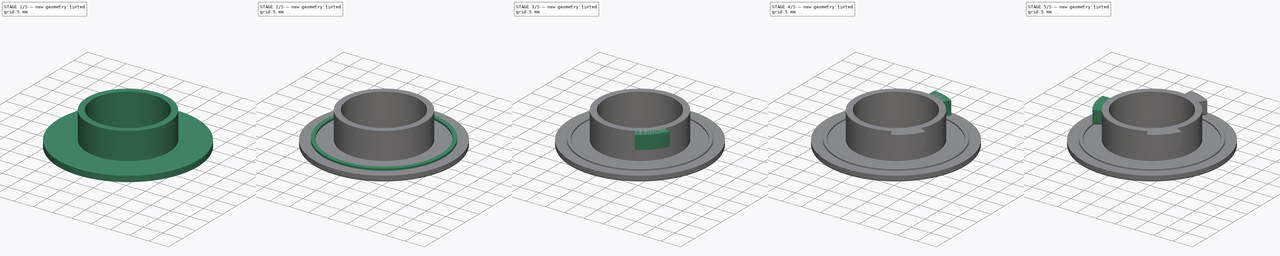
[diagram: build sequence overview — one tinted view per stage of 5, left to right]
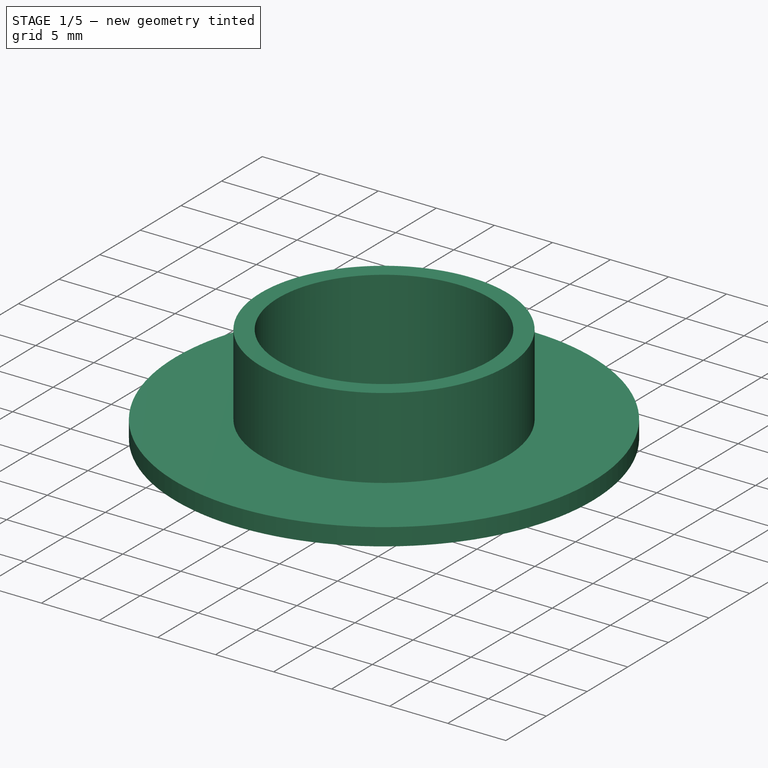
[diagram: stage 1 of 5 — iso view after this stage's code; geometry added in this stage tinted green]
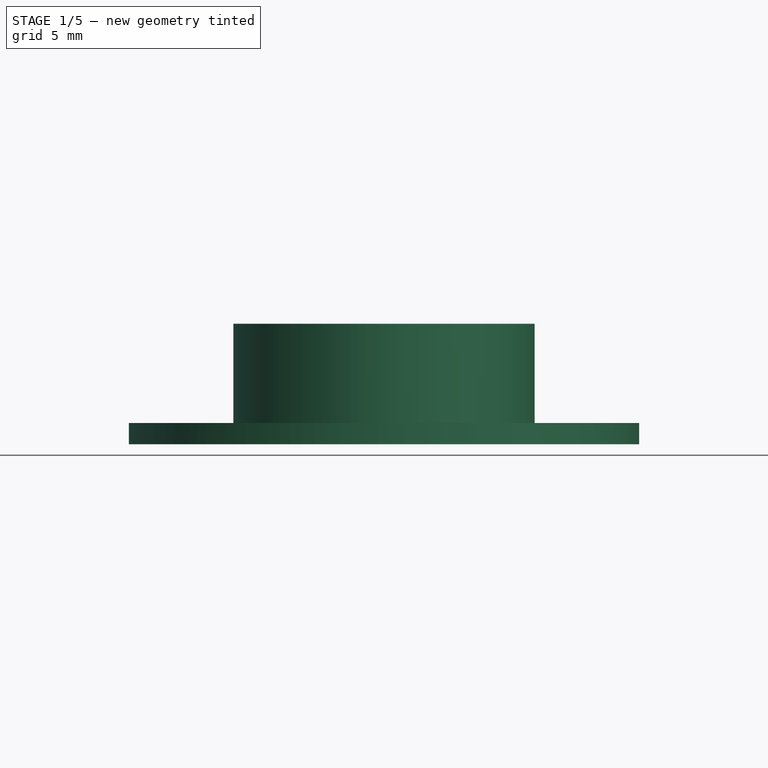
[diagram: stage 1 of 5 — front view after this stage's code; geometry added in this stage tinted green]
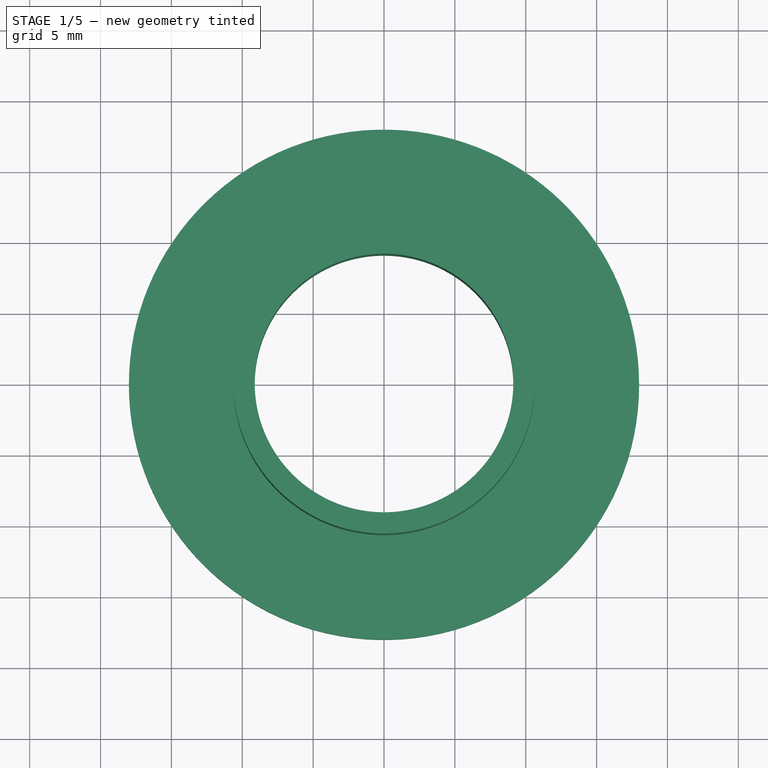
[diagram: stage 1 of 5 — top view after this stage's code; geometry added in this stage tinted green]
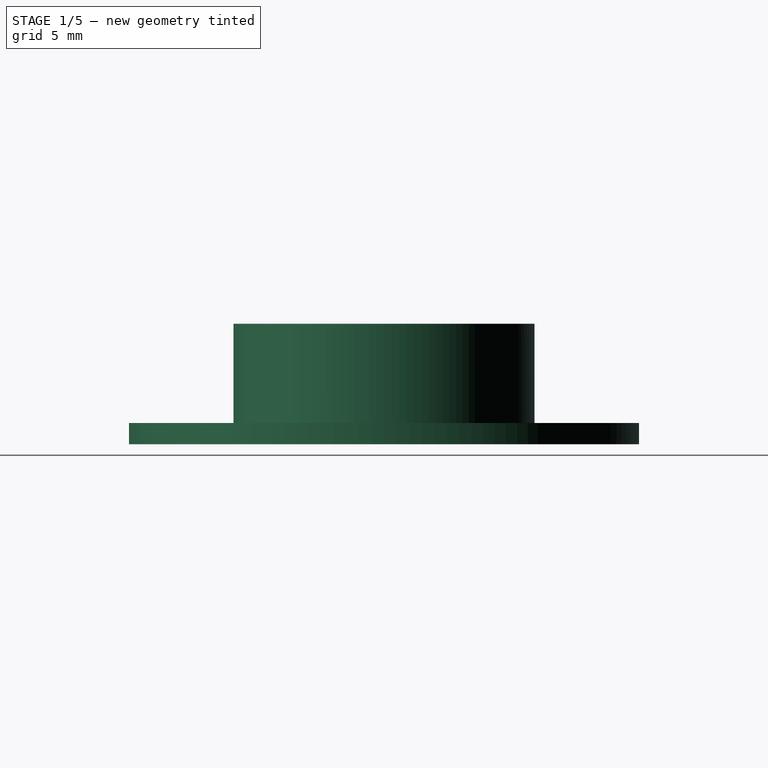
[diagram: stage 1 of 5 — right view after this stage's code; geometry added in this stage tinted green]
FCSTD DOCUMENT  (FreeCAD 0.19R21857 (Git))
Label: BayonetBaseMaleV1
License: All rights reserved
LicenseURL: http://en.wikipedia.org/wiki/All_rights_reserved
objects: Part::Fillet×11, Sketcher::SketchObject×4, Part::Revolution×4, Part::Cylinder×3, Part::MultiFuse×2, Part::Cut×2, Part::Part2DObjectPython×1, Part::Extrusion×1
note: 28 computed .brp shape members not serialized (recipe doc carries the construction recipe); baked Part::Feature solids carry a one-line shape summary decoded from their .brp

FEATURE [Part::Cylinder] Cylinder
  Angle = 360
  AttacherType = Attacher::AttachEngine3D
  Height = 8.5
  Radius = 9.125
FEATURE [Part::Cylinder] Cylinder001
  Angle = 360
  AttacherType = Attacher::AttachEngine3D
  Height = 8.5
  Radius = 10.625
FEATURE [Part::Cylinder] Cylinder002
  Angle = 360
  AttacherType = Attacher::AttachEngine3D
  Height = 1.5
  Radius = 18
FEATURE [Part::MultiFuse] Fusion
  Shapes = -> [Cylinder002,Cylinder001]
FEATURE [Part::Cut] Cut
  Base = -> Fusion
  Tool = -> Cylinder
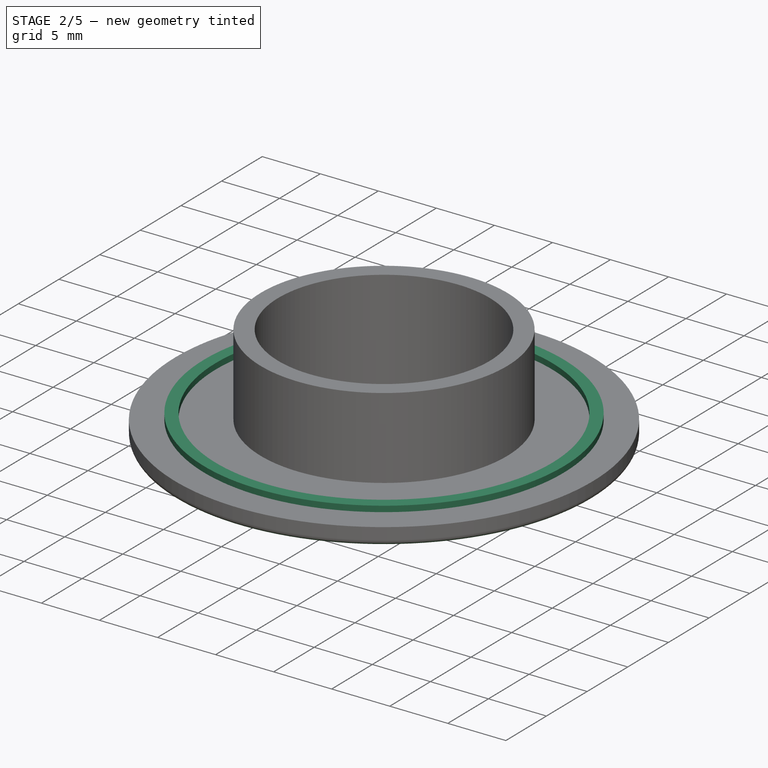
[diagram: stage 2 of 5 — iso view after this stage's code; geometry added in this stage tinted green]
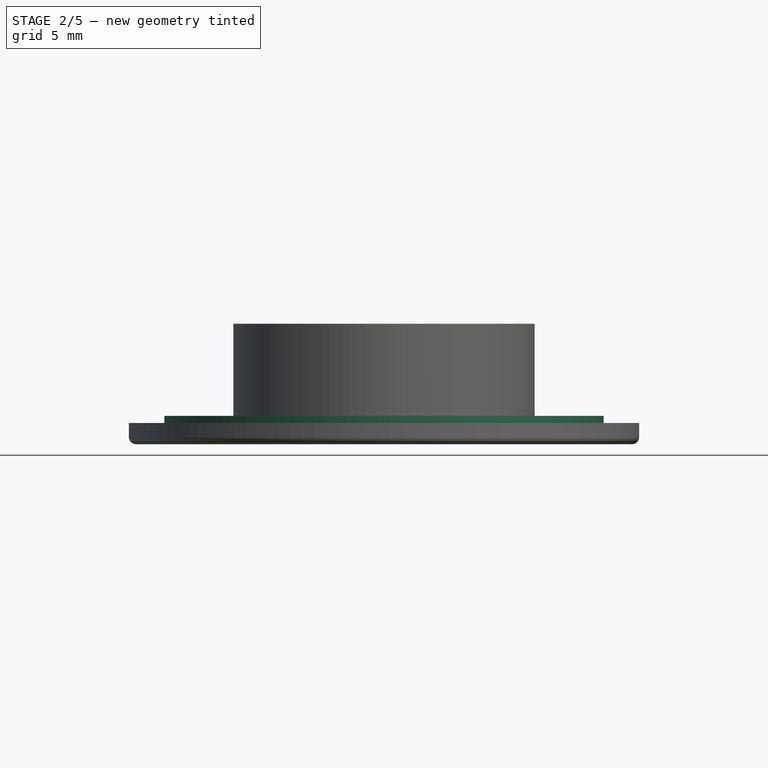
[diagram: stage 2 of 5 — front view after this stage's code; geometry added in this stage tinted green]
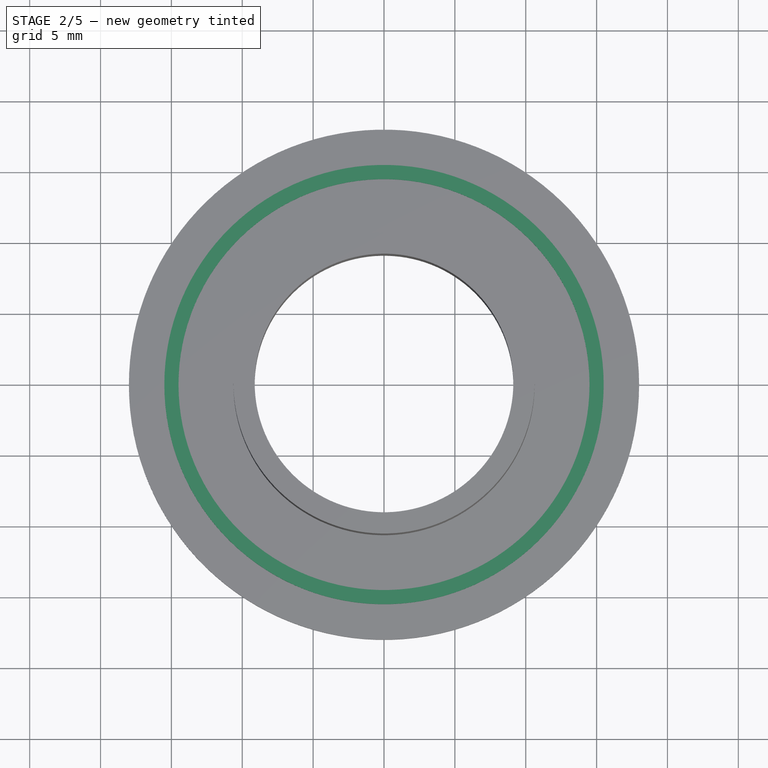
[diagram: stage 2 of 5 — top view after this stage's code; geometry added in this stage tinted green]
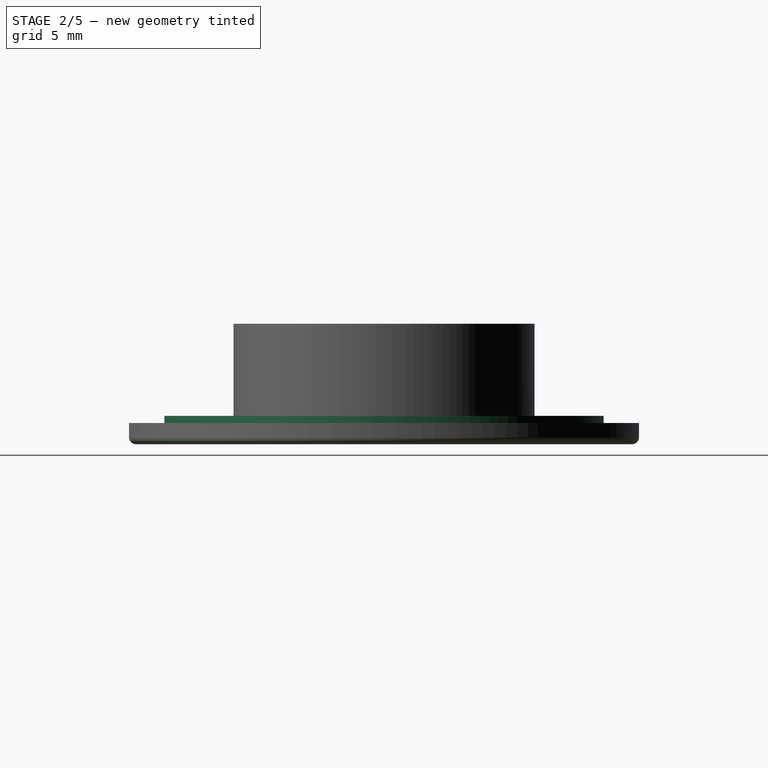
[diagram: stage 2 of 5 — right view after this stage's code; geometry added in this stage tinted green]
FEATURE [Sketcher::SketchObject] Sketch  label="GrooveProfile"
  Placement = pos=(0,0,0) rot=(1,0,0;1.5708rad)
  sketch-geometry (4):
    g0: LineSegment StartX=15.5 StartY=2 StartZ=0 EndX=14.5 EndY=2 EndZ=0
    g1: LineSegment StartX=14.5 StartY=2 StartZ=0 EndX=14.5 EndY=1 EndZ=0
    g2: LineSegment StartX=14.5 StartY=1 StartZ=0 EndX=15.5 EndY=1 EndZ=0
    g3: LineSegment StartX=15.5 StartY=1 StartZ=0 EndX=15.5 EndY=2 EndZ=0
  constraints (12):
    c: Coincident(g0,g1)
    c: Coincident(g1,g2)
    c: Coincident(g2,g3)
    c: Coincident(g3,g0)
    c: Horizontal(g0)
    c: Horizontal(g2)
    c: Vertical(g1)
    c: Vertical(g3)
    c: DistanceY(g1,g0) = 1
    c: Equal(g0,g1)
    c: DistanceX(g-1,g0) = 15.5
    c: DistanceY(g1,g-1) = -1
FEATURE [Part::Revolution] Revolve
  Angle = 360
  Axis = (0,0,1)
  Base = (0,0,0)
  FaceMakerClass = Part::FaceMakerBullseye
  Solid = true
  Source = -> Sketch
  Symmetric = false
FEATURE [Part::Part2DObjectPython] ShapeString  # Draft 2D object (typed FeaturePython)
  FontFile = <path>
  Size = 5
  String = V1
  Tracking = 0
FEATURE [Part::Extrusion] Extrude
  Base = -> ShapeString
  Dir = (0,0,1)
  DirMode = 2
  FaceMakerClass = Part::FaceMakerBullseye
  LengthFwd = 0.5
  LengthRev = 0
  Placement = pos=(-11,4,0.5) rot=(-0.707107,0.707107,0;3.14159rad)
  Solid = false
  Symmetric = false
FEATURE [Part::Fillet] Fillet010
  Base = -> Cut
  Edges = 1 edges r=0.5: [Edge3]
FEATURE [Part::Cut] Cut001
  Base = -> Fillet010
  Tool = -> Extrude
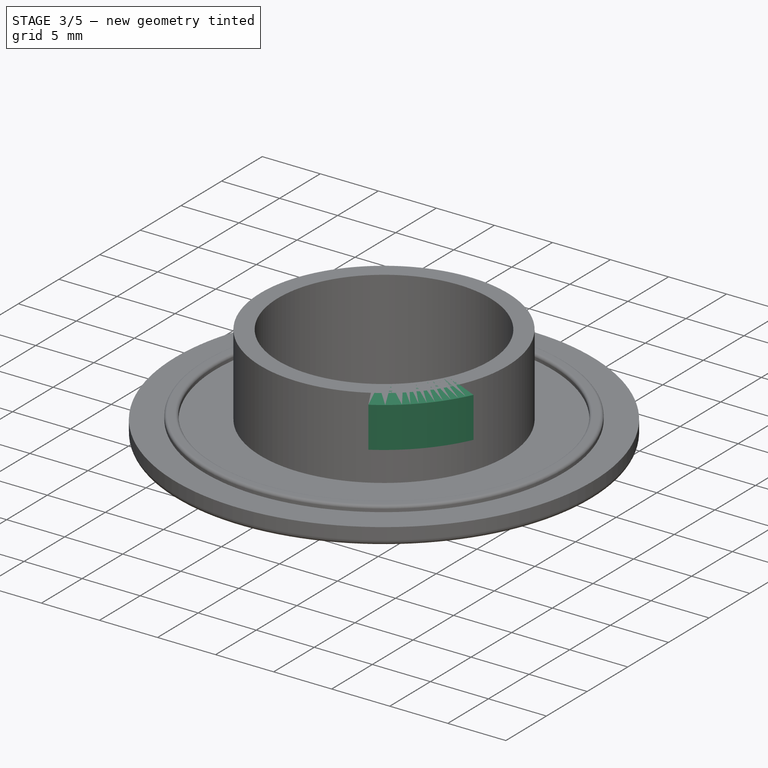
[diagram: stage 3 of 5 — iso view after this stage's code; geometry added in this stage tinted green]
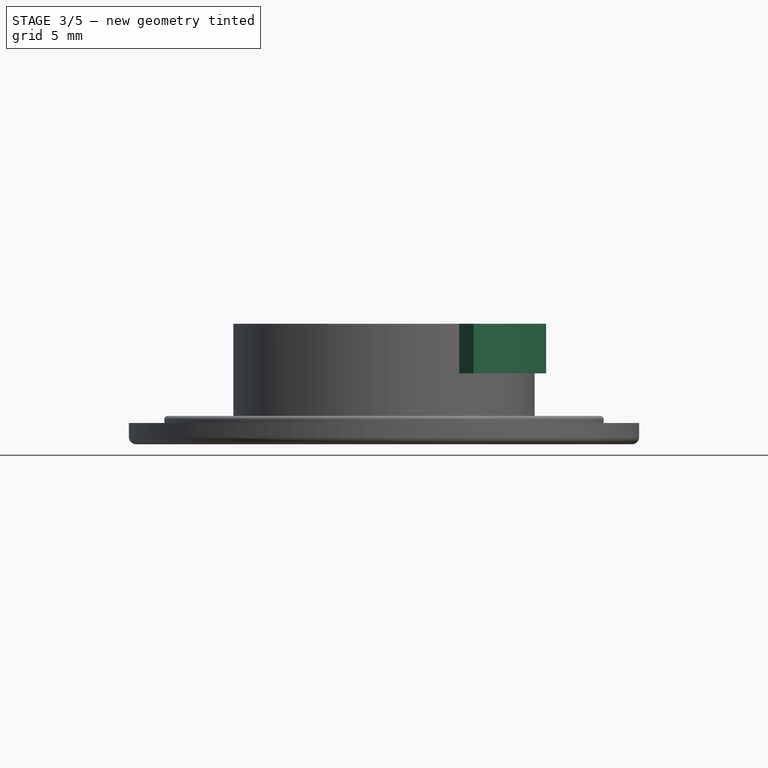
[diagram: stage 3 of 5 — front view after this stage's code; geometry added in this stage tinted green]
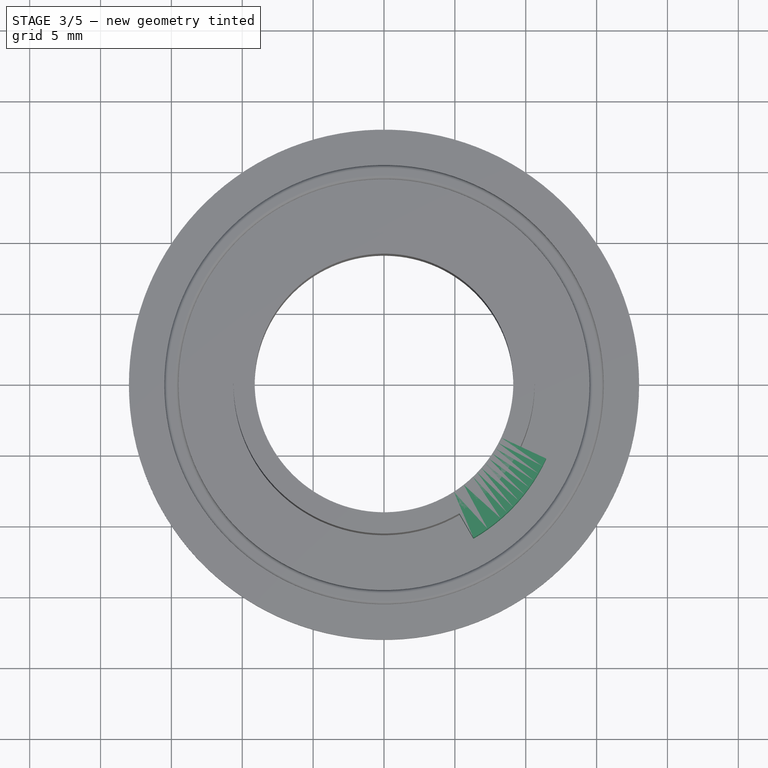
[diagram: stage 3 of 5 — top view after this stage's code; geometry added in this stage tinted green]
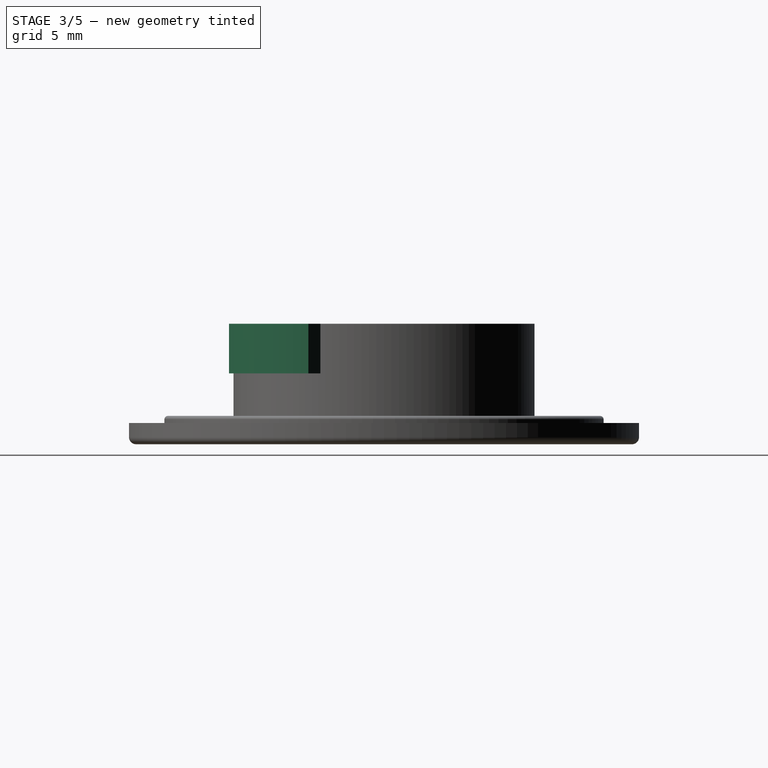
[diagram: stage 3 of 5 — right view after this stage's code; geometry added in this stage tinted green]
FEATURE [Part::Fillet] Fillet
  Base = -> Revolve
  Edges = 1 edges r=0.25: [Edge5]
FEATURE [Part::Fillet] Fillet001
  Base = -> Fillet
  Edges = 1 edges r=0.25: [Edge2]
FEATURE [Sketcher::SketchObject] Sketch001  label="BayonetTooth"
  Placement = pos=(0,0,0) rot=(1,0,0;1.5708rad)
  sketch-geometry (4):
    g0: LineSegment StartX=9.125 StartY=8.5 StartZ=0 EndX=12.625 EndY=8.5 EndZ=0
    g1: LineSegment StartX=12.625 StartY=8.5 StartZ=0 EndX=12.625 EndY=5 EndZ=0
    g2: LineSegment StartX=12.625 StartY=5 StartZ=0 EndX=9.125 EndY=5 EndZ=0
    g3: LineSegment StartX=9.125 StartY=5 StartZ=0 EndX=9.125 EndY=8.5 EndZ=0
  constraints (12):
    c: Coincident(g0,g1)
    c: Coincident(g1,g2)
    c: Coincident(g2,g3)
    c: Coincident(g3,g0)
    c: Horizontal(g0)
    c: Horizontal(g2)
    c: Vertical(g1)
    c: Vertical(g3)
    c: DistanceY(g1,g0) = 3.5
    c: DistanceX(g2,g1) = 3.5
    c: DistanceY(g-1,g0) = 8.5
    c: DistanceX(g-1,g2) = 9.125
FEATURE [Part::Revolution] Revolve001  label="LongTooth1"
  Angle = 35
  Axis = (0,0,1)
  Base = (0,0,0)
  FaceMakerClass = Part::FaceMakerBullseye
  Placement = pos=(0,0,0) rot=(0,0,-1;1.0472rad)
  Solid = true
  Source = -> Sketch001
  Symmetric = false
FEATURE [Part::Fillet] Fillet008
  Base = -> Fillet001
  Edges = 1 edges r=0.25: [Edge10]
FEATURE [Part::Fillet] Fillet009
  Base = -> Fillet008
  Edges = 1 edges r=0.25: [Edge8]
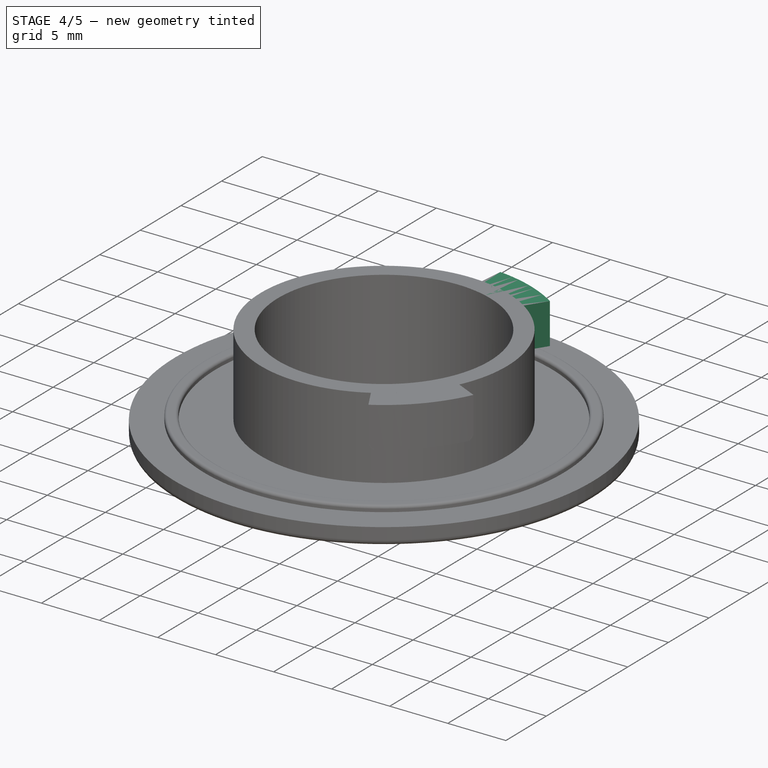
[diagram: stage 4 of 5 — iso view after this stage's code; geometry added in this stage tinted green]
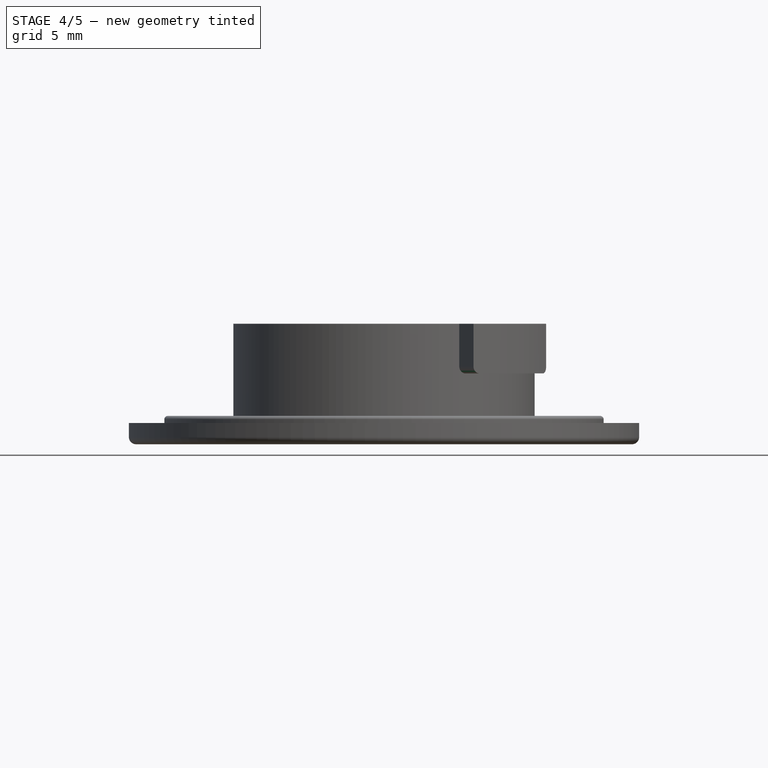
[diagram: stage 4 of 5 — front view after this stage's code; geometry added in this stage tinted green]
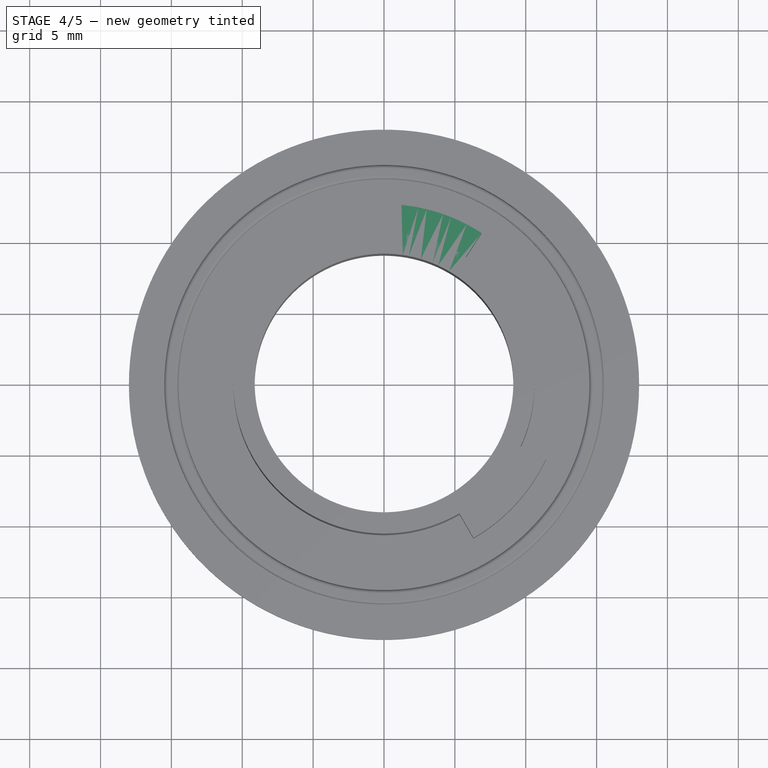
[diagram: stage 4 of 5 — top view after this stage's code; geometry added in this stage tinted green]
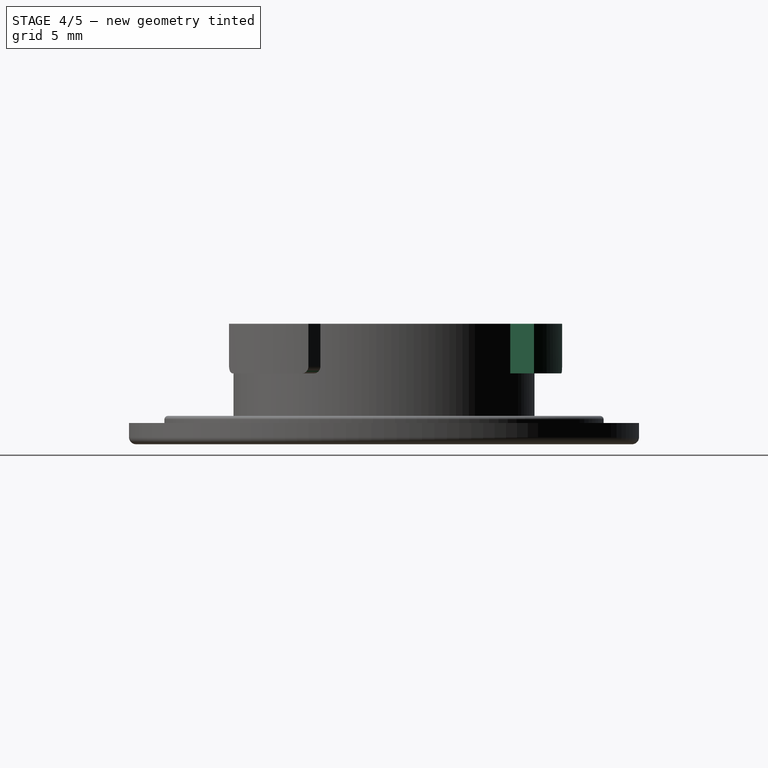
[diagram: stage 4 of 5 — right view after this stage's code; geometry added in this stage tinted green]
FEATURE [Sketcher::SketchObject] Sketch002  label="BayonetTooth001"
  Placement = pos=(0,0,0) rot=(1,0,0;1.5708rad)
  sketch-geometry (4):
    g0: LineSegment StartX=9.125 StartY=8.5 StartZ=0 EndX=12.625 EndY=8.5 EndZ=0
    g1: LineSegment StartX=12.625 StartY=8.5 StartZ=0 EndX=12.625 EndY=5 EndZ=0
    g2: LineSegment StartX=12.625 StartY=5 StartZ=0 EndX=9.125 EndY=5 EndZ=0
    g3: LineSegment StartX=9.125 StartY=5 StartZ=0 EndX=9.125 EndY=8.5 EndZ=0
  constraints (12):
    c: Coincident(g0,g1)
    c: Coincident(g1,g2)
    c: Coincident(g2,g3)
    c: Coincident(g3,g0)
    c: Horizontal(g0)
    c: Horizontal(g2)
    c: Vertical(g1)
    c: Vertical(g3)
    c: DistanceY(g1,g0) = 3.5
    c: DistanceX(g2,g1) = 3.5
    c: DistanceY(g-1,g0) = 8.5
    c: DistanceX(g-1,g2) = 9.125
FEATURE [Part::Revolution] Revolve002  label="ShortTooth"
  Angle = 27.4
  Axis = (0,0,1)
  Base = (0,0,0)
  FaceMakerClass = Part::FaceMakerBullseye
  Placement = pos=(0,0,0) rot=(0,0,1;0.994838rad)
  Solid = true
  Source = -> Sketch002
  Symmetric = false
FEATURE [Part::Fillet] Fillet004
  Base = -> Revolve002
  Edges = 1 edges r=0.5: [Edge10]
FEATURE [Part::Fillet] Fillet006
  Base = -> Revolve001
  Edges = 1 edges r=0.5: [Edge10]
FEATURE [Part::Fillet] Fillet007
  Base = -> Fillet006
  Edges = 1 edges r=0.5: [Edge8]
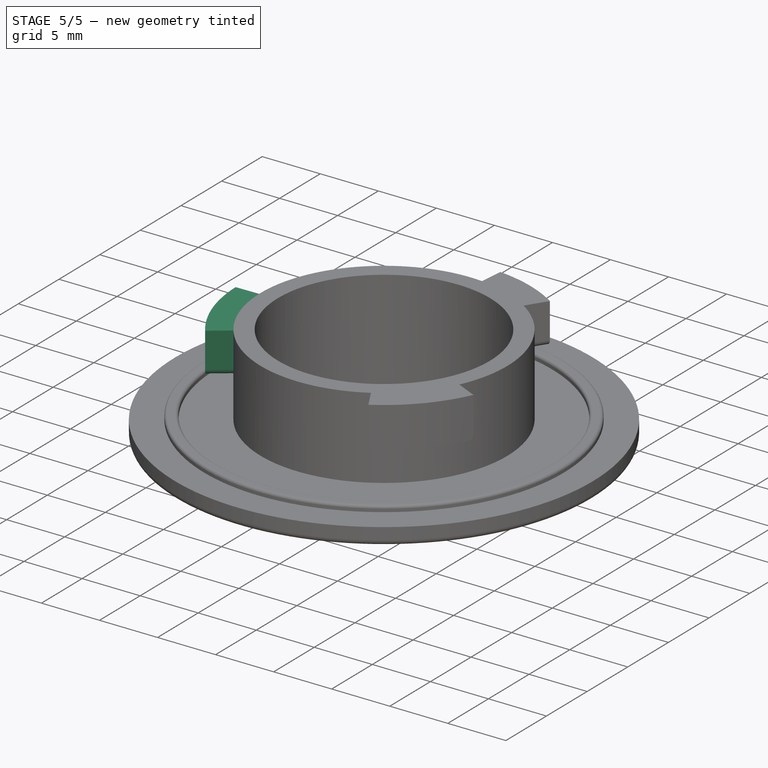
[diagram: stage 5 of 5 — iso view after this stage's code; geometry added in this stage tinted green]
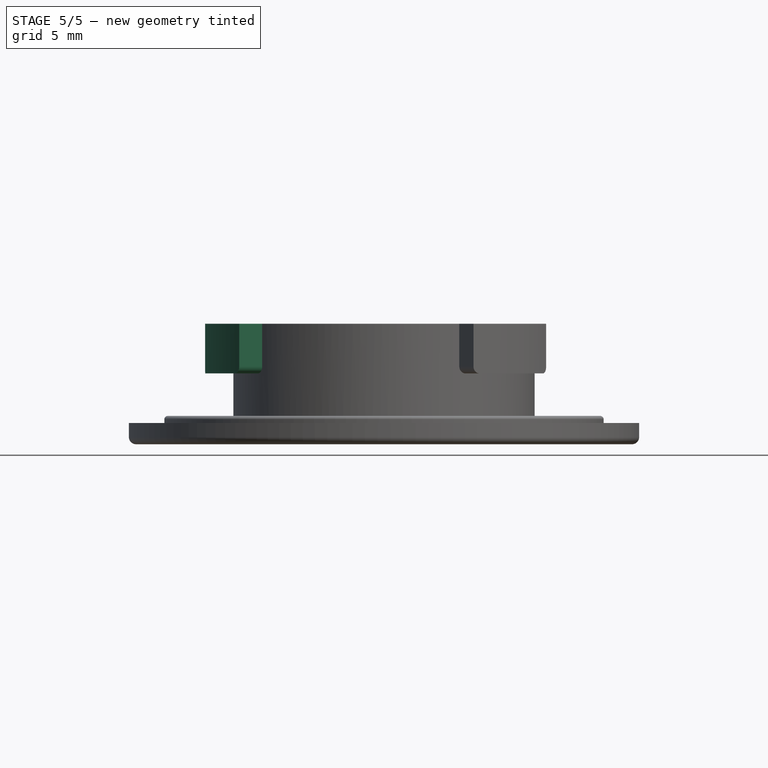
[diagram: stage 5 of 5 — front view after this stage's code; geometry added in this stage tinted green]
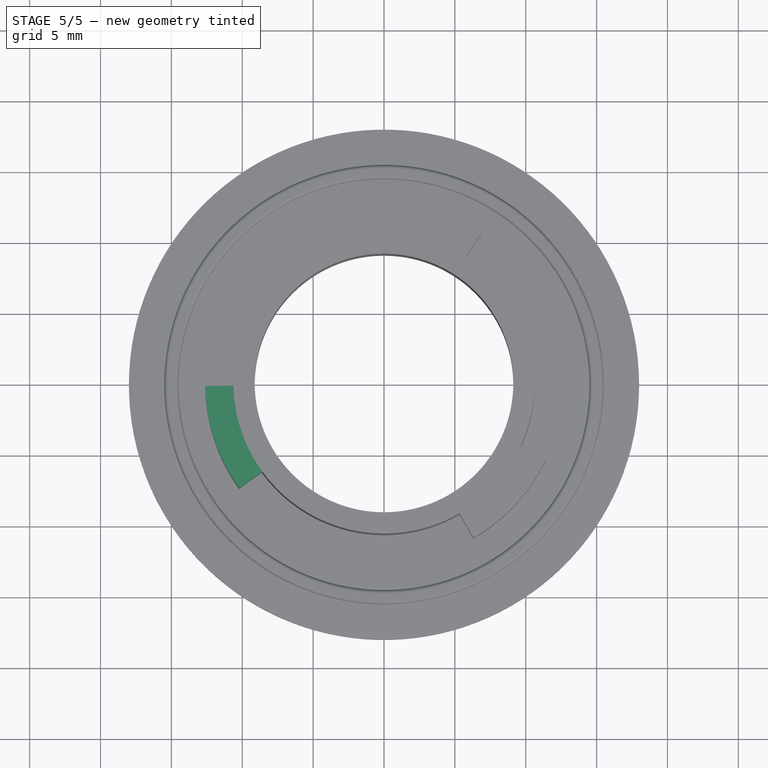
[diagram: stage 5 of 5 — top view after this stage's code; geometry added in this stage tinted green]
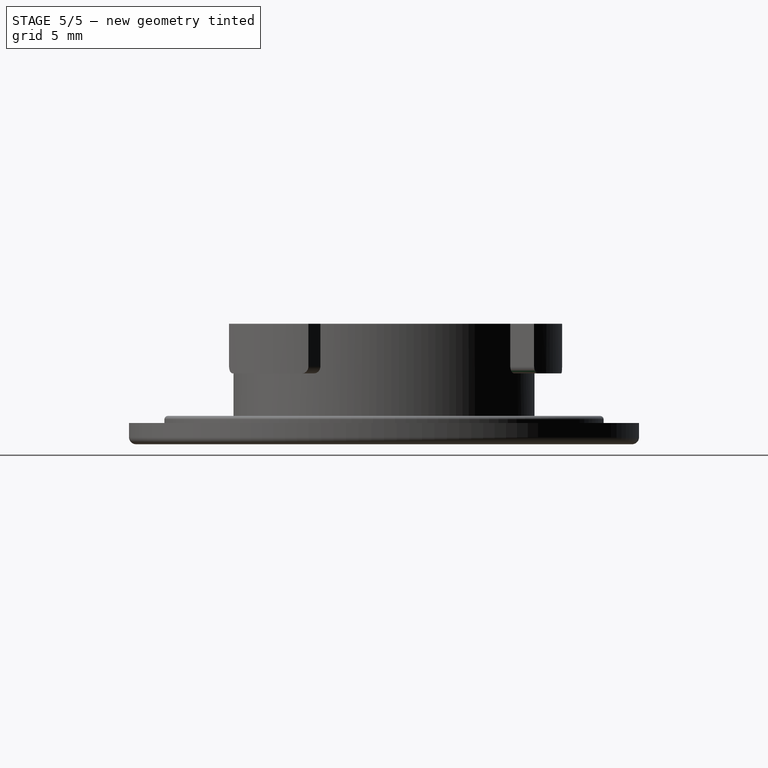
[diagram: stage 5 of 5 — right view after this stage's code; geometry added in this stage tinted green]
FEATURE [Sketcher::SketchObject] Sketch003  label="BayonetTooth002"
  Placement = pos=(0,0,0) rot=(1,0,0;1.5708rad)
  sketch-geometry (4):
    g0: LineSegment StartX=9.125 StartY=8.5 StartZ=0 EndX=12.625 EndY=8.5 EndZ=0
    g1: LineSegment StartX=12.625 StartY=8.5 StartZ=0 EndX=12.625 EndY=5 EndZ=0
    g2: LineSegment StartX=12.625 StartY=5 StartZ=0 EndX=9.125 EndY=5 EndZ=0
    g3: LineSegment StartX=9.125 StartY=5 StartZ=0 EndX=9.125 EndY=8.5 EndZ=0
  constraints (12):
    c: Coincident(g0,g1)
    c: Coincident(g1,g2)
    c: Coincident(g2,g3)
    c: Coincident(g3,g0)
    c: Horizontal(g0)
    c: Horizontal(g2)
    c: Vertical(g1)
    c: Vertical(g3)
    c: DistanceY(g1,g0) = 3.5
    c: DistanceX(g2,g1) = 3.5
    c: DistanceY(g-1,g0) = 8.5
    c: DistanceX(g-1,g2) = 9.125
FEATURE [Part::Revolution] Revolve003  label="LongTooth2"
  Angle = 35
  Axis = (0,0,1)
  Base = (0,0,0)
  FaceMakerClass = Part::FaceMakerBullseye
  Placement = pos=(0,0,0) rot=(0,0,1;3.15905rad)
  Solid = true
  Source = -> Sketch003
  Symmetric = false
FEATURE [Part::Fillet] Fillet002
  Base = -> Revolve003
  Edges = 1 edges r=0.5: [Edge10]
FEATURE [Part::Fillet] Fillet003
  Base = -> Fillet002
  Edges = 1 edges r=0.5: [Edge8]
FEATURE [Part::Fillet] Fillet005
  Base = -> Fillet004
  Edges = 1 edges r=0.5: [Edge8]
FEATURE [Part::MultiFuse] Fusion001  label="BayonetMtest"
  Shapes = -> [Fillet003,Fillet005,Fillet007,Fillet009,Cut001]
note: 1 file-system path scrubbed to <path> (originals preserved in the JSON sidecar)
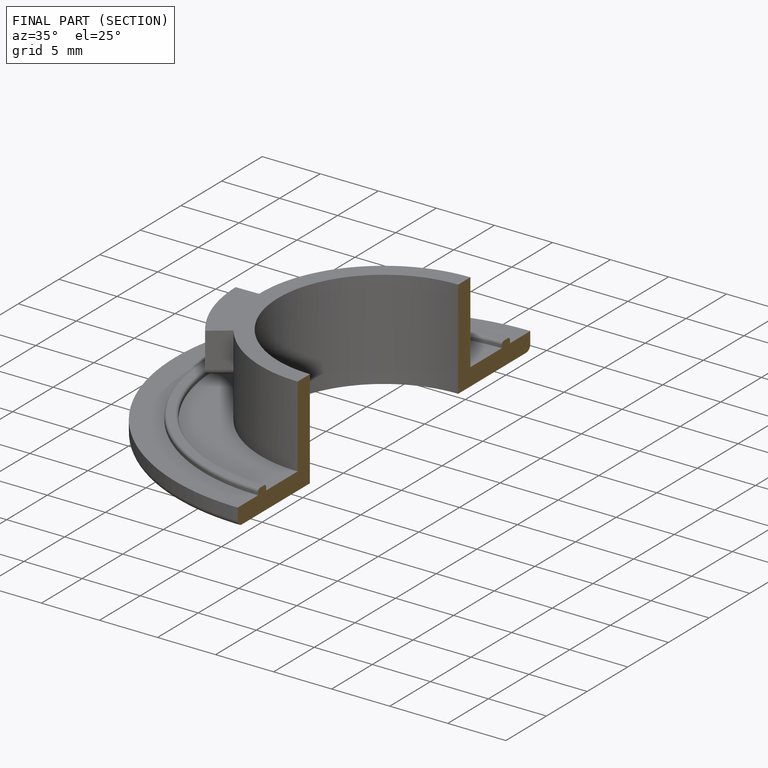
[diagram: finished part — half-section view (interior)]
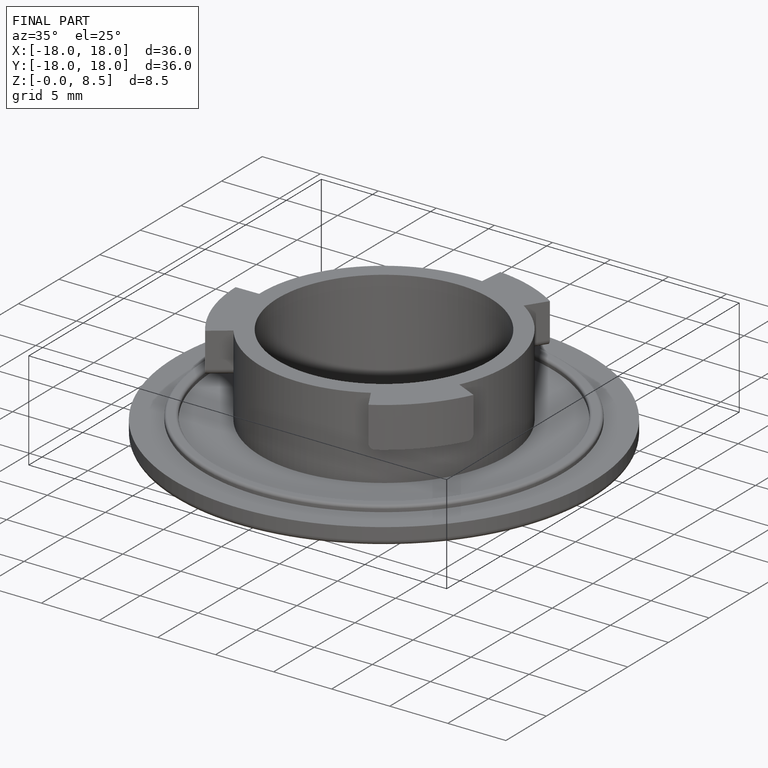
[diagram: finished part — iso view with bounding-box wireframe]
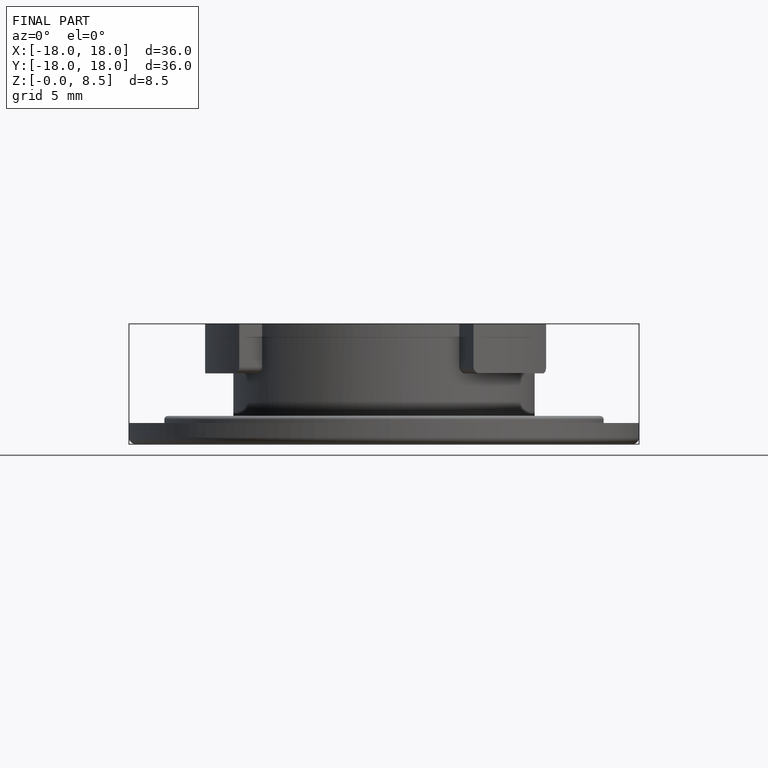
[diagram: finished part — front view with bounding-box wireframe]
